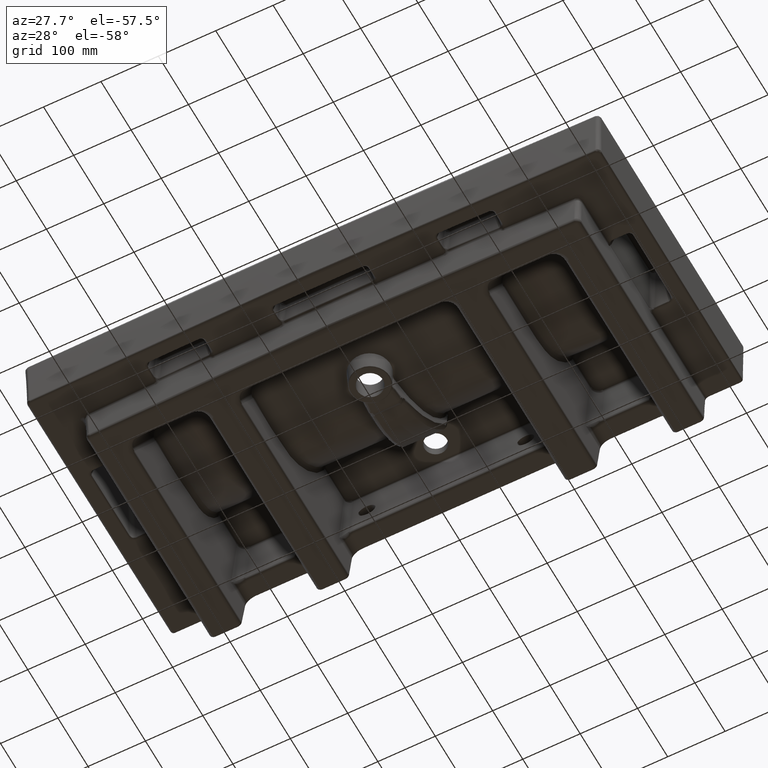
[diagram: clean part render]
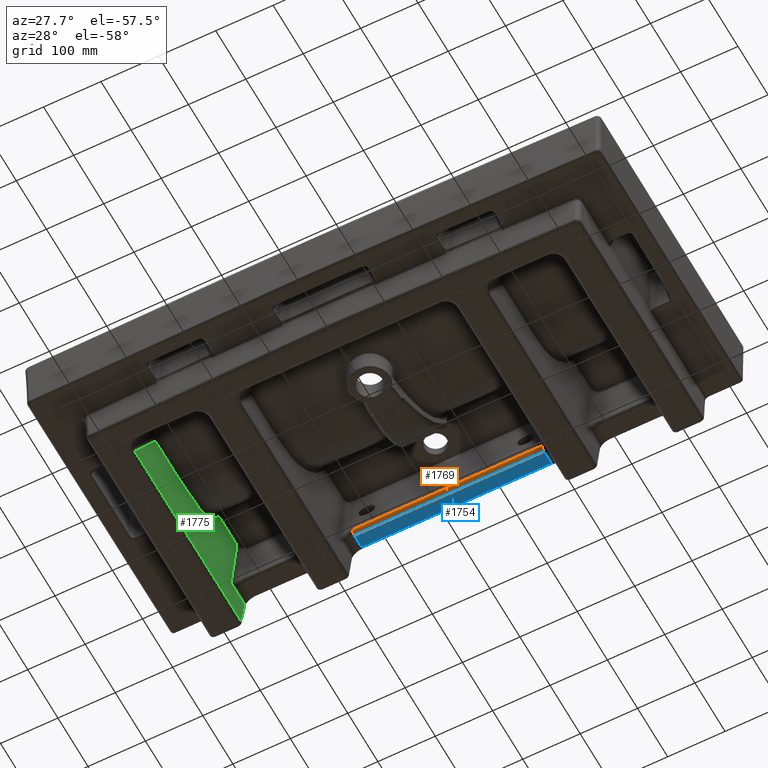
[diagram: same view with three faces highlighted in distinct colors, each labeled with its STEP entity id]
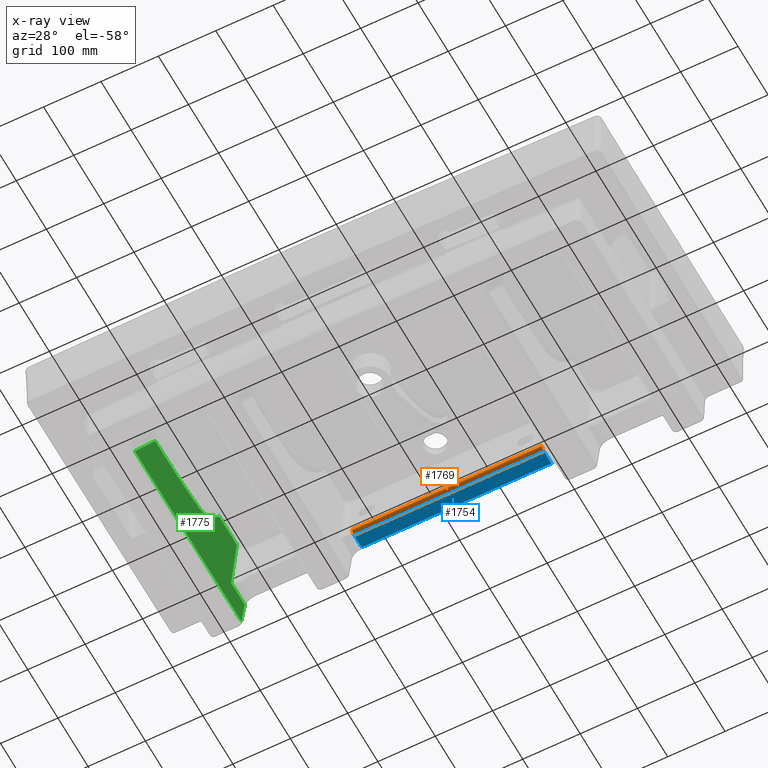
[diagram: x-ray of the same camera — body ghosted, the three highlighted faces saturated]
A machine part, auxiliary view with three faces highlighted in distinct colors.
The next image is the same camera in x-ray (body ghosted, the three faces saturated) — at least one of them is partly hidden behind the body in this view.
Their STEP definitions:

[orange] entity #1769 — the highlighted cylindrical surface (edge-blend (fillet) strip) has radius 7 mm, axis along (1, 0, 0).
#114=CYLINDRICAL_SURFACE('',#6732,7.00000000000002);
#192=LINE('',#9261,#330);
#203=LINE('',#9490,#341);
#330=VECTOR('',#7192,1.);
#341=VECTOR('',#7225,1.);
#803=FACE_OUTER_BOUND('',#2593,.T.);
#1769=ADVANCED_FACE('',(#803),#114,.T.);
#2241=CIRCLE('',#6730,7.00000000000002);
#2242=CIRCLE('',#6731,7.00000000000002);
#2593=EDGE_LOOP('',(#3194,#3195,#3196,#3197));
#3194=ORIENTED_EDGE('',*,*,#5677,.F.);
#3195=ORIENTED_EDGE('',*,*,#5777,.T.);
#3196=ORIENTED_EDGE('',*,*,#5715,.F.);
#3197=ORIENTED_EDGE('',*,*,#5778,.F.);
#5079=VERTEX_POINT('',#9255);
#5082=VERTEX_POINT('',#9260);
#5119=VERTEX_POINT('',#9491);
#5120=VERTEX_POINT('',#9492);
#5677=EDGE_CURVE('',#5082,#5079,#192,.T.);
#5715=EDGE_CURVE('',#5119,#5120,#203,.T.);
#5777=EDGE_CURVE('',#5082,#5120,#2241,.T.);
#5778=EDGE_CURVE('',#5079,#5119,#2242,.T.);
#6730=AXIS2_PLACEMENT_3D('',#11934,#7299,#7300);
#6731=AXIS2_PLACEMENT_3D('',#11935,#7301,#7302);
#6732=AXIS2_PLACEMENT_3D('',#11936,#7303,#7304);
#7192=DIRECTION('',(-1.,0.,0.));
#7225=DIRECTION('',(1.,0.,0.));
#7299=DIRECTION('',(-1.,0.,0.));
#7300=DIRECTION('',(0.,-0.00872653549837436,0.999961923064171));
#7301=DIRECTION('',(-1.,0.,0.));
#7302=DIRECTION('',(0.,-0.00872653549837436,0.999961923064171));
#7303=DIRECTION('',(1.,0.,0.));
#7304=DIRECTION('',(0.,0.00872653549837436,-0.999961923064171));
#9255=CARTESIAN_POINT('',(-165.233882017809,-35.0189254622999,-108.793942048867));
#9260=CARTESIAN_POINT('',(165.233862297661,-35.0189254622999,-108.793942048867));
#9261=CARTESIAN_POINT('',(222.581397983008,-35.0189254622999,-108.793942048867));
#9490=CARTESIAN_POINT('',(189.999990139927,-42.0629595626073,-102.282503903627));
#9491=CARTESIAN_POINT('',(-165.233882017809,-42.0629595626073,-102.282503903627));
#9492=CARTESIAN_POINT('',(165.233862297661,-42.0629595626073,-102.282503903627));
#11934=CARTESIAN_POINT('',(165.233862297661,-35.0800112107885,-101.794208587418));
#11935=CARTESIAN_POINT('',(-165.233882017809,-35.0800112107885,-101.794208587418));
#11936=CARTESIAN_POINT('',(189.999990139927,-35.0800112107885,-101.794208587418));

[blue] entity #1754 — the highlighted planar face has unit normal (0, -0.0087, 1).
#189=LINE('',#9254,#327);
#190=LINE('',#9257,#328);
#191=LINE('',#9259,#329);
#192=LINE('',#9261,#330);
#327=VECTOR('',#7189,1.);
#328=VECTOR('',#7190,1.);
#329=VECTOR('',#7191,1.);
#330=VECTOR('',#7192,1.);
#792=FACE_OUTER_BOUND('',#2572,.T.);
#1754=ADVANCED_FACE('',(#792),#2182,.F.);
#2182=PLANE('',#6693);
#2572=EDGE_LOOP('',(#3082,#3083,#3084,#3085));
#3082=ORIENTED_EDGE('',*,*,#5674,.T.);
#3083=ORIENTED_EDGE('',*,*,#5675,.T.);
#3084=ORIENTED_EDGE('',*,*,#5676,.F.);
#3085=ORIENTED_EDGE('',*,*,#5677,.T.);
#5079=VERTEX_POINT('',#9255);
#5080=VERTEX_POINT('',#9256);
#5081=VERTEX_POINT('',#9258);
#5082=VERTEX_POINT('',#9260);
#5674=EDGE_CURVE('',#5079,#5080,#189,.T.);
#5675=EDGE_CURVE('',#5080,#5081,#190,.T.);
#5676=EDGE_CURVE('',#5082,#5081,#191,.T.);
#5677=EDGE_CURVE('',#5082,#5079,#192,.T.);
#6693=AXIS2_PLACEMENT_3D('',#9262,#7193,#7194);
#7189=DIRECTION('',(-4.25994520571545E-019,0.999961923064172,0.00872653549837393));
#7190=DIRECTION('',(1.,0.,0.));
#7191=DIRECTION('',(4.25994520571545E-019,0.999961923064172,0.00872653549837393));
#7192=DIRECTION('',(-1.,0.,0.));
#7193=DIRECTION('',(0.,-0.00872653549837393,0.999961923064172));
#7194=DIRECTION('',(1.,0.,0.));
#9254=CARTESIAN_POINT('',(-165.233882017809,-474.864582747424,-112.632416948334));
#9255=CARTESIAN_POINT('',(-165.233882017809,-35.0189254622999,-108.793942048867));
#9256=CARTESIAN_POINT('',(-165.233882017809,-10.1293587714647,-108.576734090987));
#9257=CARTESIAN_POINT('',(165.233862297661,-10.1293587714647,-108.576734090987));
#9258=CARTESIAN_POINT('',(165.233862297661,-10.1293587714647,-108.576734090987));
#9259=CARTESIAN_POINT('',(165.233862297661,-474.864582747424,-112.632416948334));
#9260=CARTESIAN_POINT('',(165.233862297661,-35.0189254622999,-108.793942048867));
#9261=CARTESIAN_POINT('',(222.581397983008,-35.0189254622999,-108.793942048867));
#9262=CARTESIAN_POINT('',(222.581397983008,-474.864582747424,-112.632416948334));

[green] entity #1775 — the highlighted planar face has unit normal (-0.9892, -0.0013, 0.1466).
#231=LINE('',#15149,#369);
#232=LINE('',#15152,#370);
#233=LINE('',#15154,#371);
#234=LINE('',#15156,#372);
#235=LINE('',#15158,#373);
#236=LINE('',#15181,#374);
#369=VECTOR('',#7331,1.);
#370=VECTOR('',#7332,1.);
#371=VECTOR('',#7333,1.);
#372=VECTOR('',#7334,1.);
#373=VECTOR('',#7335,1.);
#374=VECTOR('',#7336,1.);
#809=FACE_OUTER_BOUND('',#2599,.T.);
#1298=B_SPLINE_CURVE_WITH_KNOTS('',3,(#15160,#15161,#15162,#15163,#15164,
#15165,#15166,#15167,#15168,#15169,#15170,#15171,#15172,#15173,#15174,#15175,
#15176,#15177,#15178,#15179),.UNSPECIFIED.,.F.,.F.,(4,2,2,2,2,2,2,2,2,4),
(0.,0.0625,0.125,0.1875,0.25,0.3125,0.375,0.5,0.75,1.),.UNSPECIFIED.);
#1775=ADVANCED_FACE('',(#809),#2192,.F.);
#2192=PLANE('',#6743);
#2599=EDGE_LOOP('',(#3222,#3223,#3224,#3225,#3226,#3227,#3228));
#3222=ORIENTED_EDGE('',*,*,#5799,.T.);
#3223=ORIENTED_EDGE('',*,*,#5800,.T.);
#3224=ORIENTED_EDGE('',*,*,#5801,.T.);
#3225=ORIENTED_EDGE('',*,*,#5802,.T.);
#3226=ORIENTED_EDGE('',*,*,#5803,.T.);
#3227=ORIENTED_EDGE('',*,*,#5804,.T.);
#3228=ORIENTED_EDGE('',*,*,#5805,.T.);
#5191=VERTEX_POINT('',#15150);
#5192=VERTEX_POINT('',#15151);
#5193=VERTEX_POINT('',#15153);
#5194=VERTEX_POINT('',#15155);
#5195=VERTEX_POINT('',#15157);
#5196=VERTEX_POINT('',#15159);
#5197=VERTEX_POINT('',#15180);
#5799=EDGE_CURVE('',#5191,#5192,#231,.T.);
#5800=EDGE_CURVE('',#5192,#5193,#232,.T.);
#5801=EDGE_CURVE('',#5193,#5194,#233,.T.);
#5802=EDGE_CURVE('',#5194,#5195,#234,.T.);
#5803=EDGE_CURVE('',#5195,#5196,#235,.T.);
#5804=EDGE_CURVE('',#5196,#5197,#1298,.T.);
#5805=EDGE_CURVE('',#5197,#5191,#236,.T.);
#6743=AXIS2_PLACEMENT_3D('',#15182,#7337,#7338);
#7331=DIRECTION('',(-2.95240763472304E-019,0.999961923064172,0.00872653549837393));
#7332=DIRECTION('',(0.146566544104786,-0.0086322960083827,0.9891631471172));
#7333=DIRECTION('',(2.95240763472304E-019,-0.999961923064172,-0.00872653549837393));
#7334=DIRECTION('',(0.146299024485529,-0.0690059229215242,0.986830673437106));
#7335=DIRECTION('',(2.95240763472304E-019,-0.999961923064172,-0.00872653549837393));
#7336=DIRECTION('',(-0.128495287618933,-0.473446307228816,-0.871399767747919));
#7337=DIRECTION('',(-0.989200812853073,-0.0012790181500044,0.146560963299891));
#7338=DIRECTION('',(0.146566544104786,-0.00863229600838272,0.9891631471172));
#15149=CARTESIAN_POINT('',(-375.397844827848,-441.470969379584,-170.515742768382));
#15150=CARTESIAN_POINT('',(-375.397844827848,-363.51284807359,-169.835412550529));
#15151=CARTESIAN_POINT('',(-375.397844827848,-9.62171410285728,-166.747051412044));
#15152=CARTESIAN_POINT('',(-369.054723505383,-9.99530345919397,-123.937951366744));
#15153=CARTESIAN_POINT('',(-369.054723505383,-9.99530345919397,-123.937951366744));
#15154=CARTESIAN_POINT('',(-369.054723505383,-56.3625591805265,-124.342592277245));
#15155=CARTESIAN_POINT('',(-369.054723505383,-55.4230268832403,-124.334393103101));
#15156=CARTESIAN_POINT('',(-354.908708946244,-62.0953802618593,-28.9152942886251));
#15157=CARTESIAN_POINT('',(-355.662273140253,-61.739941168051,-33.9983101437659));
#15158=CARTESIAN_POINT('',(-355.662273140253,-124.933955756131,-34.5497959542434));
#15159=CARTESIAN_POINT('',(-355.662273140253,-120.613471988641,-34.5120916636124));
#15160=CARTESIAN_POINT('',(-355.662273140253,-120.613471988641,-34.5120916636124));
#15161=CARTESIAN_POINT('',(-356.257978584061,-122.678177114716,-38.5507735284105));
#15162=CARTESIAN_POINT('',(-356.842420472595,-124.87461481547,-42.5145825933045));
#15163=CARTESIAN_POINT('',(-357.961173936922,-129.853787794069,-50.1089669630971));
#15164=CARTESIAN_POINT('',(-358.485294362278,-132.642436443126,-53.6708095661854));
#15165=CARTESIAN_POINT('',(-359.464866714055,-138.664683645473,-60.3349055717695));
#15166=CARTESIAN_POINT('',(-359.923365899131,-141.898531268245,-63.4577283621498));
#15167=CARTESIAN_POINT('',(-360.767115571895,-148.887665106471,-69.2135385873397));
#15168=CARTESIAN_POINT('',(-361.145624278233,-152.679309004734,-71.8013402284223));
#15169=CARTESIAN_POINT('',(-361.749521076556,-160.613603149977,-75.9465320743345));
#15170=CARTESIAN_POINT('',(-361.982377318605,-164.790183523135,-77.55462402944));
#15171=CARTESIAN_POINT('',(-362.359432327336,-173.41208428944,-80.1747670746853));
#15172=CARTESIAN_POINT('',(-362.505416613142,-177.861535106169,-81.1989054206368));
#15173=CARTESIAN_POINT('',(-362.841959304752,-191.267942881556,-83.5873677716601));
#15174=CARTESIAN_POINT('',(-362.927562552624,-200.358241050815,-84.2444694756696));
#15175=CARTESIAN_POINT('',(-363.127492392949,-227.579923782238,-85.8314390316349));
#15176=CARTESIAN_POINT('',(-363.158570446176,-245.75652043005,-86.1998224764257));
#15177=CARTESIAN_POINT('',(-363.18753719015,-282.106921271721,-86.7125562046204));
#15178=CARTESIAN_POINT('',(-363.187910429552,-300.283150393037,-86.8736969008407));
#15179=CARTESIAN_POINT('',(-363.170498864814,-318.460676117094,-86.9148118825927));
#15180=CARTESIAN_POINT('',(-363.170498864814,-318.460676117094,-86.9148118825927));
#15181=CARTESIAN_POINT('',(-377.722590656628,-372.078472138696,-185.600838760394));
#15182=CARTESIAN_POINT('',(-376.409447654119,-441.411389240797,-177.342950446496));